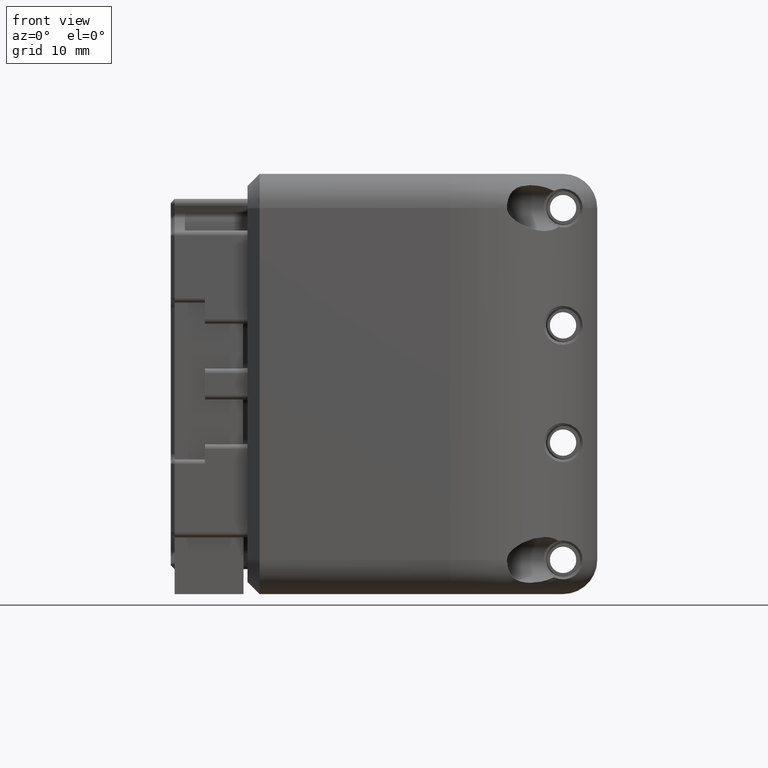
[diagram: clean part render]
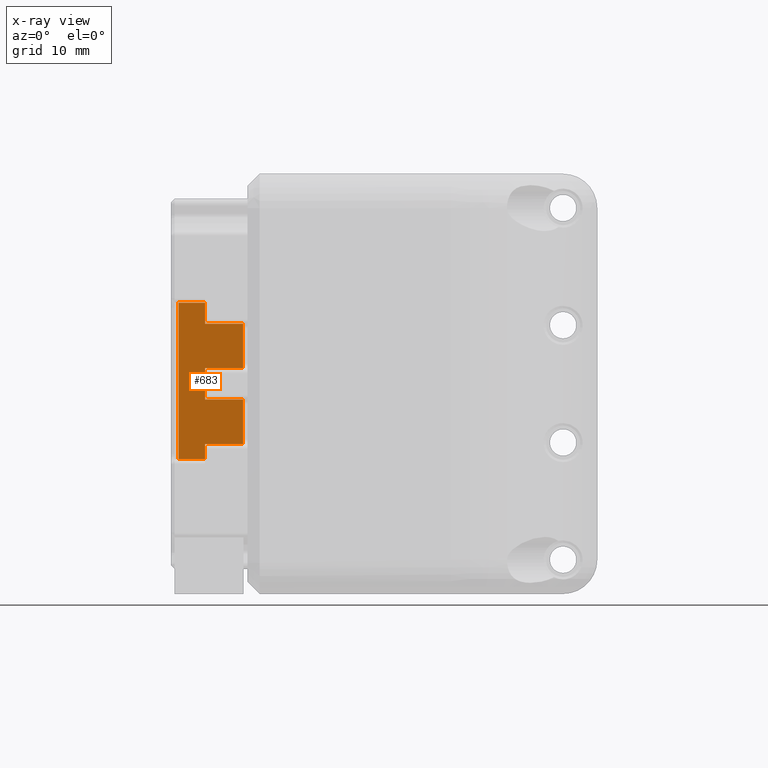
[diagram: x-ray — body ghosted, one internal face saturated and labeled with its STEP entity id]
A machine part, front view, then the same camera in x-ray: the body is ghosted and one INTERNAL B-rep face — a face not visible from any outside direction — is saturated and labeled: STEP entity #683.
In plain terms, the highlighted planar face has unit normal (0, -1, 0).
Its self-contained STEP definition (entity closure, byte-faithful):
#683=ADVANCED_FACE('',(#1071),#3892,.T.);
#1071=FACE_OUTER_BOUND('',#1491,.F.);
#1491=EDGE_LOOP('',(#3631,#3632,#3633,#3634,#3635,#3636,#3637,#3638,#3639,
#3640,#3641,#3642));
#3631=ORIENTED_EDGE('',*,*,#5779,.F.);
#3632=ORIENTED_EDGE('',*,*,#4742,.F.);
#3633=ORIENTED_EDGE('',*,*,#4736,.T.);
#3634=ORIENTED_EDGE('',*,*,#4732,.T.);
#3635=ORIENTED_EDGE('',*,*,#5780,.T.);
#3636=ORIENTED_EDGE('',*,*,#4729,.T.);
#3637=ORIENTED_EDGE('',*,*,#4733,.T.);
#3638=ORIENTED_EDGE('',*,*,#4751,.F.);
#3639=ORIENTED_EDGE('',*,*,#5775,.F.);
#3640=ORIENTED_EDGE('',*,*,#4750,.F.);
#3641=ORIENTED_EDGE('',*,*,#4735,.T.);
#3642=ORIENTED_EDGE('',*,*,#4743,.F.);
#3892=PLANE('',#8652);
#4729=EDGE_CURVE('',#7822,#7821,#5825,.T.);
#4732=EDGE_CURVE('',#7819,#7820,#5828,.T.);
#4733=EDGE_CURVE('',#7821,#7818,#5829,.T.);
#4735=EDGE_CURVE('',#7816,#7815,#5831,.T.);
#4736=EDGE_CURVE('',#7814,#7819,#5832,.T.);
#4742=EDGE_CURVE('',#7814,#7808,#5837,.T.);
#4743=EDGE_CURVE('',#7807,#7815,#5838,.T.);
#4750=EDGE_CURVE('',#7816,#7802,#5843,.T.);
#4751=EDGE_CURVE('',#7801,#7818,#5844,.T.);
#5775=EDGE_CURVE('',#7802,#7801,#6457,.T.);
#5779=EDGE_CURVE('',#7808,#7807,#6461,.T.);
#5780=EDGE_CURVE('',#7820,#7822,#6462,.T.);
#5825=LINE('',#11638,#6507);
#5828=LINE('',#11641,#6510);
#5829=LINE('',#11642,#6511);
#5831=LINE('',#11644,#6513);
#5832=LINE('',#11645,#6514);
#5837=LINE('',#11651,#6519);
#5838=LINE('',#11652,#6520);
#5843=LINE('',#11659,#6525);
#5844=LINE('',#11660,#6526);
#6457=LINE('',#13352,#7139);
#6461=LINE('',#13356,#7143);
#6462=LINE('',#13357,#7144);
#6507=VECTOR('',#8718,2.69000000000012);
#6510=VECTOR('',#8721,2.69000000000012);
#6511=VECTOR('',#8722,2.15745215936942);
#6513=VECTOR('',#8724,3.2);
#6514=VECTOR('',#8725,1.54254809349067);
#6519=VECTOR('',#8732,3.89999999999985);
#6520=VECTOR('',#8733,3.89999999999985);
#6525=VECTOR('',#8742,3.89999999999985);
#6526=VECTOR('',#8743,3.89999999999985);
#7139=VECTOR('',#10082,4.54999987356996);
#7143=VECTOR('',#10086,4.54999987356995);
#7144=VECTOR('',#10087,16.);
#7801=VERTEX_POINT('',#11526);
#7802=VERTEX_POINT('',#11527);
#7807=VERTEX_POINT('',#11532);
#7808=VERTEX_POINT('',#11533);
#7814=VERTEX_POINT('',#11539);
#7815=VERTEX_POINT('',#11540);
#7816=VERTEX_POINT('',#11541);
#7818=VERTEX_POINT('',#11543);
#7819=VERTEX_POINT('',#11544);
#7820=VERTEX_POINT('',#11545);
#7821=VERTEX_POINT('',#11546);
#7822=VERTEX_POINT('',#11547);
#8652=AXIS2_PLACEMENT_3D('',#13746,#10854,#10855);
#8718=DIRECTION('',(1.,0.,0.));
#8721=DIRECTION('',(-1.,0.,0.));
#8722=DIRECTION('',(0.,0.,-1.));
#8724=DIRECTION('',(0.,0.,-1.));
#8725=DIRECTION('',(0.,0.,-1.));
#8732=DIRECTION('',(1.,0.,0.));
#8733=DIRECTION('',(-1.,0.,0.));
#8742=DIRECTION('',(1.,0.,0.));
#8743=DIRECTION('',(-1.,0.,0.));
#10082=DIRECTION('',(0.,0.,1.));
#10086=DIRECTION('',(0.,0.,1.));
#10087=DIRECTION('',(0.,0.,1.));
#10854=DIRECTION('',(0.,-1.,0.));
#10855=DIRECTION('',(-1.,0.,0.));
#11526=CARTESIAN_POINT('',(58.415000013099,18.1778981724273,6.14999974640818));
#11527=CARTESIAN_POINT('',(58.415000013099,18.1778981724273,1.59999987283923));
#11532=CARTESIAN_POINT('',(58.415000013099,18.1778981724273,-1.60000012716179));
#11533=CARTESIAN_POINT('',(58.415000013099,18.1778981724273,-6.15000000073073));
#11539=CARTESIAN_POINT('',(54.5150000130991,18.1778981724273,-6.15000000073073));
#11540=CARTESIAN_POINT('',(54.5150000130991,18.1778981724273,-1.60000012716179));
#11541=CARTESIAN_POINT('',(54.5150000130991,18.1778981724273,1.59999987283923));
#11543=CARTESIAN_POINT('',(54.5150000130991,18.1778981724273,6.14999974640817));
#11544=CARTESIAN_POINT('',(54.5150000130991,18.1778981724273,-7.69254809422156));
#11545=CARTESIAN_POINT('',(51.825000013099,18.1778981724273,-7.69254809422156));
#11546=CARTESIAN_POINT('',(54.5150000130991,18.1778981724273,8.30745190577844));
#11547=CARTESIAN_POINT('',(51.825000013099,18.1778981724273,8.30745190577844));
#11638=CARTESIAN_POINT('',(51.825000013099,18.1778981724273,8.30745190577844));
#11641=CARTESIAN_POINT('',(54.5150000130991,18.1778981724273,-7.69254809422156));
#11642=CARTESIAN_POINT('',(54.5150000130991,18.1778981724273,8.30745190577844));
#11644=CARTESIAN_POINT('',(54.5150000130991,18.1778981724273,1.59999987283906));
#11645=CARTESIAN_POINT('',(54.5150000130991,18.1778981724273,-6.15000000073089));
#11651=CARTESIAN_POINT('',(54.5150000130991,18.1778981724273,-6.15000000073065));
#11652=CARTESIAN_POINT('',(58.415000013099,18.1778981724273,-1.60000012716222));
#11659=CARTESIAN_POINT('',(54.5150000130991,18.1778981724273,1.59999987283931));
#11660=CARTESIAN_POINT('',(58.415000013099,18.1778981724273,6.14999974640775));
#13352=CARTESIAN_POINT('',(58.415000013099,18.1778981724273,1.59999987283907));
#13356=CARTESIAN_POINT('',(58.415000013099,18.1778981724273,-6.15000000073089));
#13357=CARTESIAN_POINT('',(51.825000013099,18.1778981724273,-7.69254809422156));
#13746=CARTESIAN_POINT('',(58.585000013099,18.1778981724273,8.95805988018387));